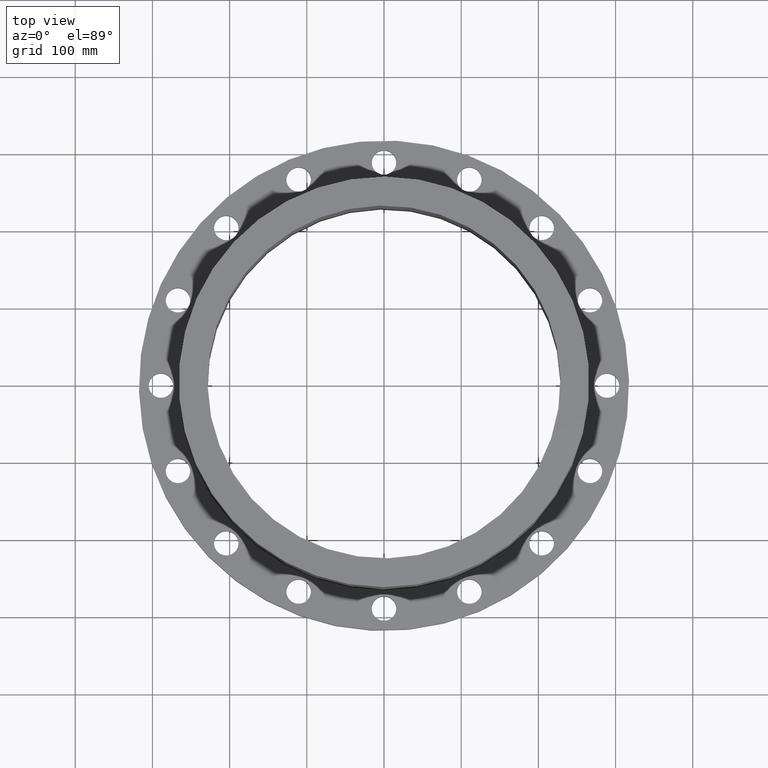
[diagram: clean part render]
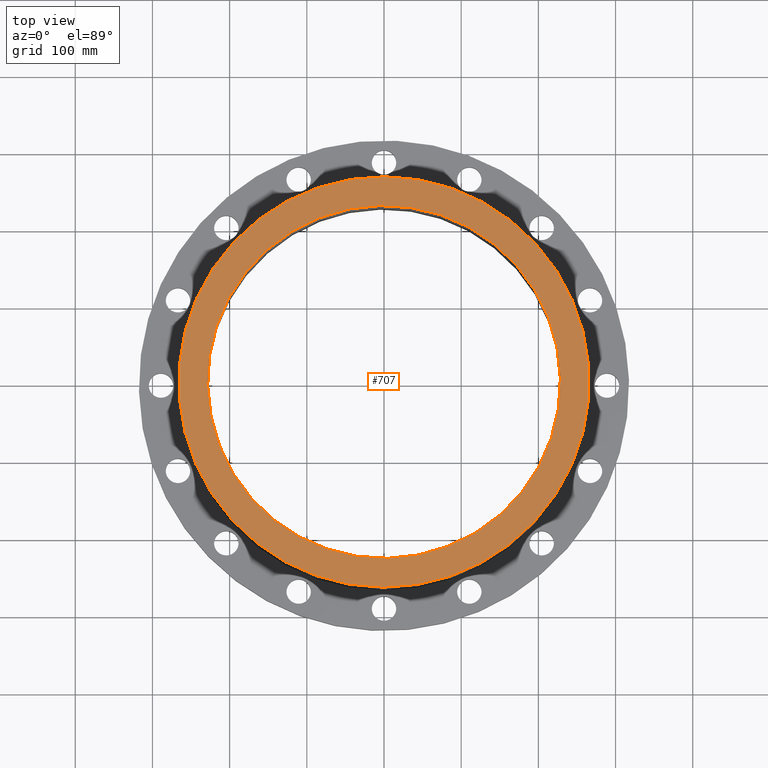
[diagram: same view with one face highlighted and labeled with its STEP entity id]
A machine part, top view. The second image highlights one B-rep face of the part: STEP entity #707.
In plain terms, the highlighted planar face has unit normal (0, 0, -1).
Its self-contained STEP definition (entity closure, byte-faithful):
#651=AXIS2_PLACEMENT_3D('Circle Axis2P3D',#649,#650,$) ;
#670=AXIS2_PLACEMENT_3D('Circle Axis2P3D',#668,#669,$) ;
#683=AXIS2_PLACEMENT_3D('Plane Axis2P3D',#680,#681,#682) ;
#691=AXIS2_PLACEMENT_3D('Circle Axis2P3D',#689,#690,$) ;
#700=AXIS2_PLACEMENT_3D('Circle Axis2P3D',#698,#699,$) ;
#646=CARTESIAN_POINT('Vertex',(5.01958538921,9.18828942303,11.9375)) ;
#649=CARTESIAN_POINT('Axis2P3D Location',(0.,0.,11.9375)) ;
#653=CARTESIAN_POINT('Vertex',(-5.01958538921,-9.18828942303,11.9375)) ;
#668=CARTESIAN_POINT('Axis2P3D Location',(0.,0.,11.9375)) ;
#680=CARTESIAN_POINT('Axis2P3D Location',(0.,10.47,11.9375)) ;
#689=CARTESIAN_POINT('Axis2P3D Location',(0.,0.,11.9375)) ;
#693=CARTESIAN_POINT('Vertex',(-4.31482984746,-7.89824305704,11.9375)) ;
#695=CARTESIAN_POINT('Vertex',(4.31482984746,7.89824305704,11.9375)) ;
#698=CARTESIAN_POINT('Axis2P3D Location',(0.,0.,11.9375)) ;
#650=DIRECTION('Axis2P3D Direction',(0.,0.,-0.0393700787402)) ;
#669=DIRECTION('Axis2P3D Direction',(0.,0.,-0.0393700787402)) ;
#681=DIRECTION('Axis2P3D Direction',(0.,0.,-0.0393700787402)) ;
#682=DIRECTION('Axis2P3D XDirection',(0.0393700787402,0.,0.)) ;
#690=DIRECTION('Axis2P3D Direction',(0.,0.,-0.0393700787402)) ;
#699=DIRECTION('Axis2P3D Direction',(0.,0.,-0.0393700787402)) ;
#686=ORIENTED_EDGE('',*,*,#655,.F.) ;
#687=ORIENTED_EDGE('',*,*,#672,.F.) ;
#704=ORIENTED_EDGE('',*,*,#697,.T.) ;
#705=ORIENTED_EDGE('',*,*,#702,.T.) ;
#706=FACE_BOUND('',#703,.T.) ;
#707=ADVANCED_FACE('PartBody',(#688,#706),#684,.F.) ;
#652=CIRCLE('generated circle',#651,10.47) ;
#671=CIRCLE('generated circle',#670,10.47) ;
#692=CIRCLE('generated circle',#691,9.00000000004) ;
#701=CIRCLE('generated circle',#700,9.00000000004) ;
#655=EDGE_CURVE('',#647,#654,#652,.T.) ;
#672=EDGE_CURVE('',#654,#647,#671,.T.) ;
#697=EDGE_CURVE('',#694,#696,#692,.T.) ;
#702=EDGE_CURVE('',#696,#694,#701,.T.) ;
#685=EDGE_LOOP('',(#686,#687)) ;
#703=EDGE_LOOP('',(#704,#705)) ;
#688=FACE_OUTER_BOUND('',#685,.T.) ;
#684=PLANE('',#683) ;
#647=VERTEX_POINT('',#646) ;
#654=VERTEX_POINT('',#653) ;
#694=VERTEX_POINT('',#693) ;
#696=VERTEX_POINT('',#695) ;